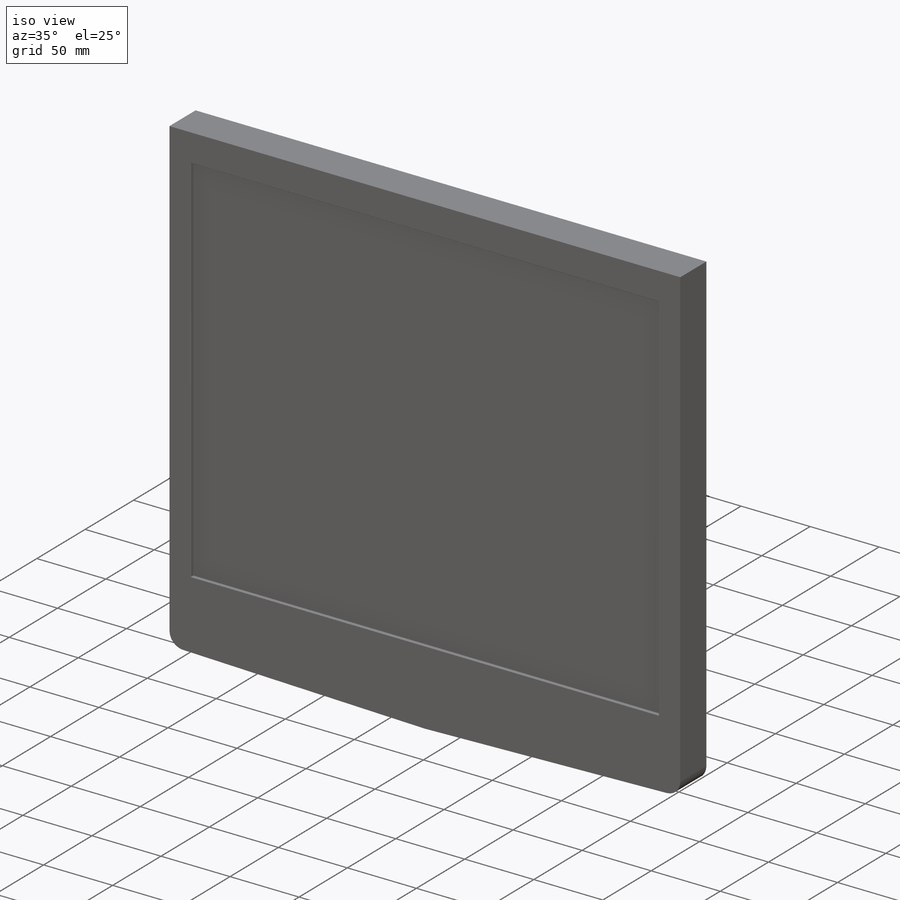
[diagram: iso view]
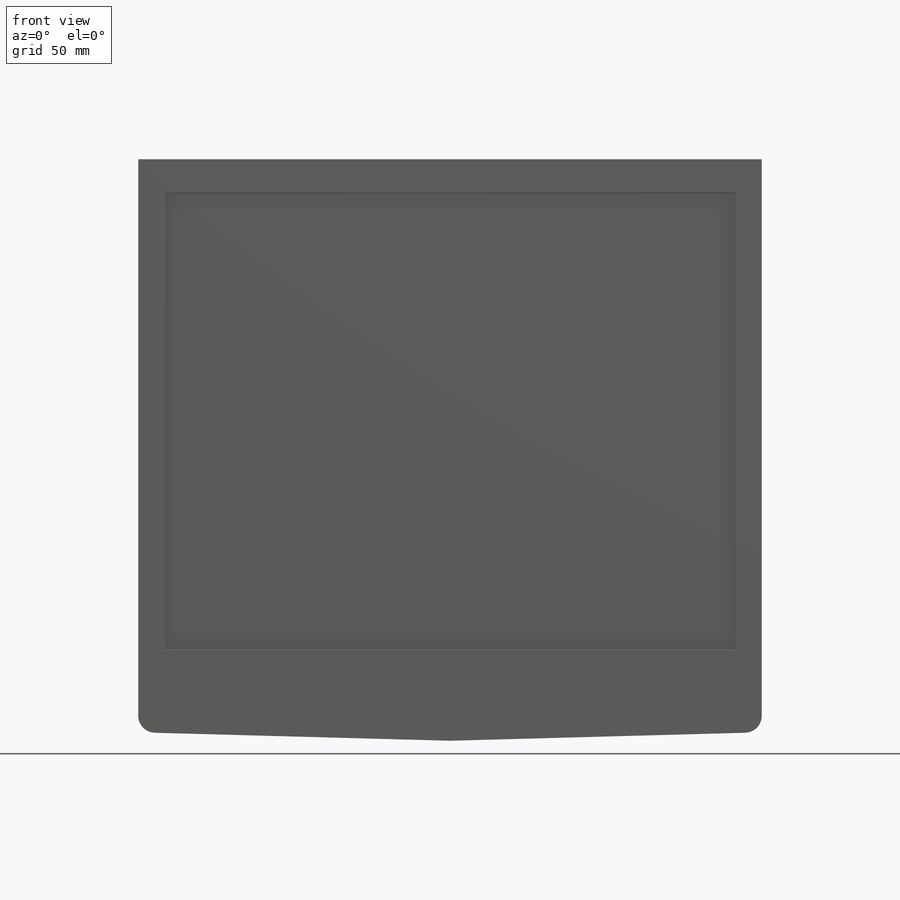
[diagram: front view]
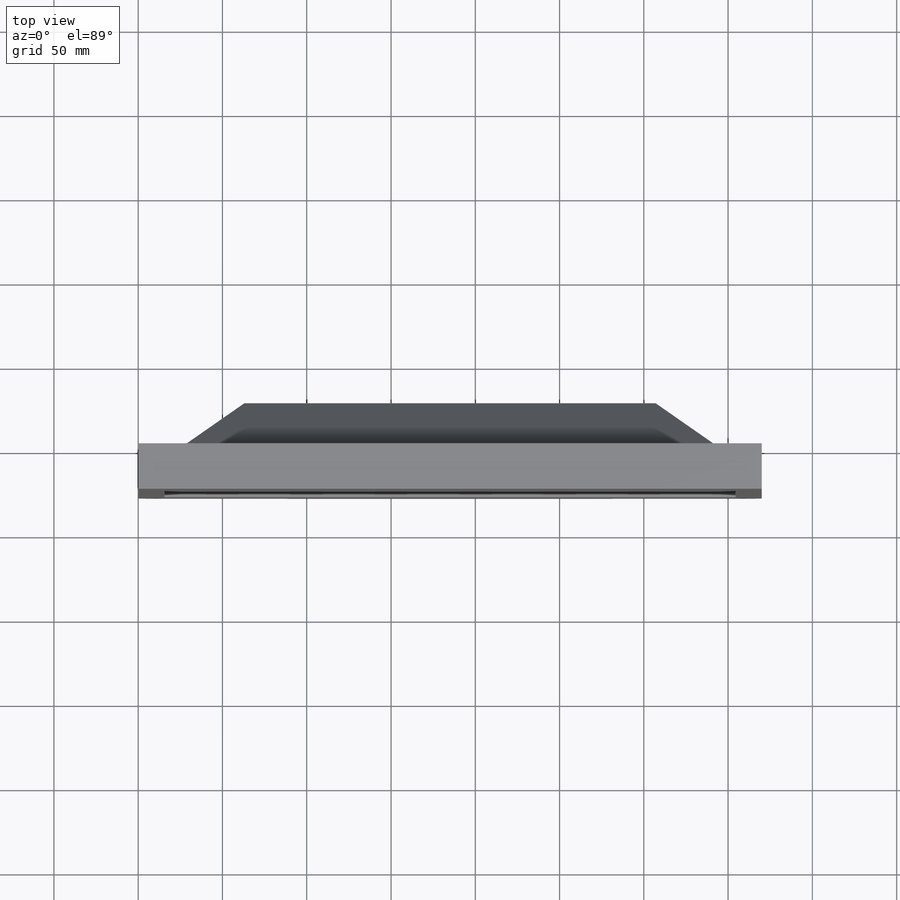
[diagram: top view]
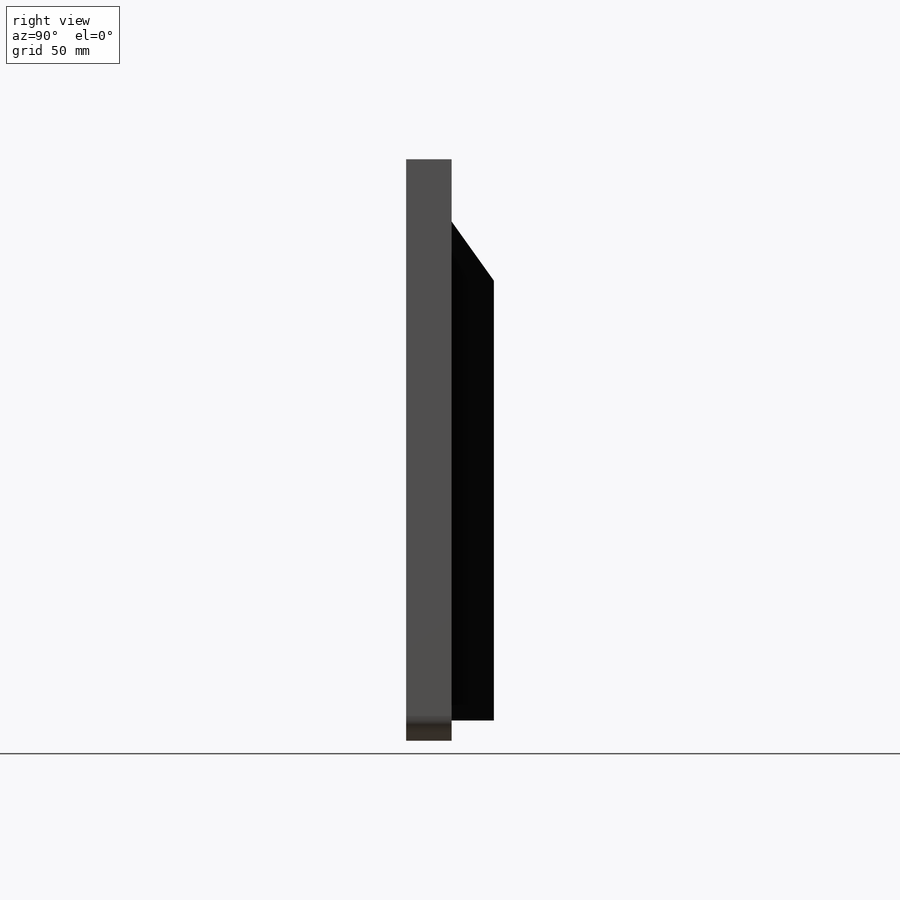
[diagram: right view]
SOLIDWORKS PART (.sldprt)
format: sldprt  version: not decoded by parser v0  size: 241,664 bytes
history: native  units: mm
features: sketch x5, cut_extrude x3, extrude x2, material x1, fillet x1, chamfer x1 (+11 scaffold rows collapsed)
feature tree (24):
  scaffold x11  (default folders/planes/origin — collapsed)
  material  "Matériau <non spécifié>"
  sketch  "Sketch1"  dims[D5=10.0mm D1=370.0mm D2=340.0mm D3=340.0mm D4=345.0mm]
  extrude  "Boss-Extrude1"  Depth=27mm
  sketch  "Sketch2"  dims[D1=339.0mm D2=271.0mm D3=15.5mm D4=20.0mm D5=271.0mm]
  cut_extrude  "Cut-Extrude1"  Depth=2.54mm
  fillet  "Fillet2"  Radius=0.254mm
  sketch  "Esquisse1"  dims[D1=28.0mm D2=28.0mm D3=37.0mm D4=12.0mm]
  extrude  "Boss.-Extru.1"  Depth=25mm
  chamfer  "Chanfrein1"  Distance=25mm
  sketch  "Esquisse2"  dims[D1=23.0mm D2=23.0mm D3=53.0mm D4=53.0mm D5=48.0mm D6=48.0mm]
  cut_extrude  "Enlèv. mat.-Extru.1"  Depth=25mm
  sketch  "Esquisse3"  dims[c1.D1=~10.315304mm c1.D2=5.0mm c1.D4=~18.542097mm c1.D5=5.0mm c1.D6=5.0mm c1.D7=5.0mm c1.D8=5.0mm c1.D10=5.0mm c2.D1=125.0mm c2.D3=12.2mm c2.D4=106.0mm c2.D7=69.0mm c2.D8=69.0mm c2.D9=75.0mm c2.D10=75.0mm]
  cut_extrude  "Enlèv. mat.-Extru.2"  Depth=15mm
decode coverage: 12 of 12 modeling features carry decoded parameters
note: ~ marks probable driven/reference dimensions
note: suppression state not decoded; provenance and decode notes live in map.json
